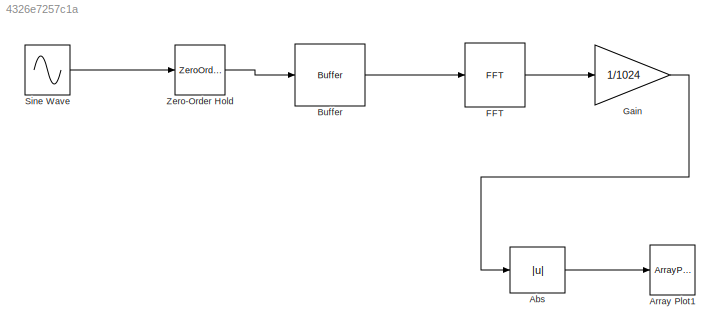
MODEL slx_4326e7257c1a
KIND model
CONFIG AbsTol = auto
CONFIG EnableMultiTasking = off
CONFIG FixedStep = auto
CONFIG MaxStep = auto
CONFIG MinStep = auto
CONFIG RelTol = 1e-3
CONFIG SampleTimeConstraint = Unconstrained
CONFIG SolverName = VariableStepAuto
CONFIG StartTime = 0.0
CONFIG StopTime = 10
BLOCK [Abs] Abs
  SaturateOnIntegerOverflow = off
BLOCK [ArrayPlot] Array Plot1
  DefaultConfigurationName = dsp.scopes.ArrayPlotBlockSpecification
  GraphicalSettings = {"Style":{"BackgroundColor":[0.1568627450980392,0.1568627450980392,0.1568627450980392],"AxesColor":[0,0,0],"LabelsColor":[0.6862745098039216,0.6862745098039216,0.6862745098039216],"LineStyle":["-"],"LineColor":[[1,1,0.06666666666666667]],"LineWidth":[1.5],"Marker":["o"],"FontSize":"small"}}
  Ports = [1]
  WindowPosition = [1.000000,41.000000,1707.000000,1004.000000,]
  YLimits = [0.001,569.5567195789555]
BLOCK [Buffer] Buffer
  N = 1024
  OutputFrames = off
BLOCK [Reference] FFT  REF=dspxfrm3/FFT
  Ports = [1, 1]
  SourceBlock = dspxfrm3/FFT
  SourceProductBaseCode = DS
  SourceType = FFT
BLOCK [Gain] Gain
  Gain = 1/1024
BLOCK [Sin] Sine Wave
  Frequency = 6308.3180412
  Ports = [0, 1]
  SampleTime = 0
BLOCK [ZeroOrderHold] Zero-Order Hold
  SampleTime = 1e-5
LINE Abs:1 -> Array Plot1:1
LINE Buffer:1 -> FFT:1
LINE FFT:1 -> Gain:1
LINE Gain:1 -> Abs:1
LINE Sine Wave:1 -> Zero-Order Hold:1
LINE Zero-Order Hold:1 -> Buffer:1
